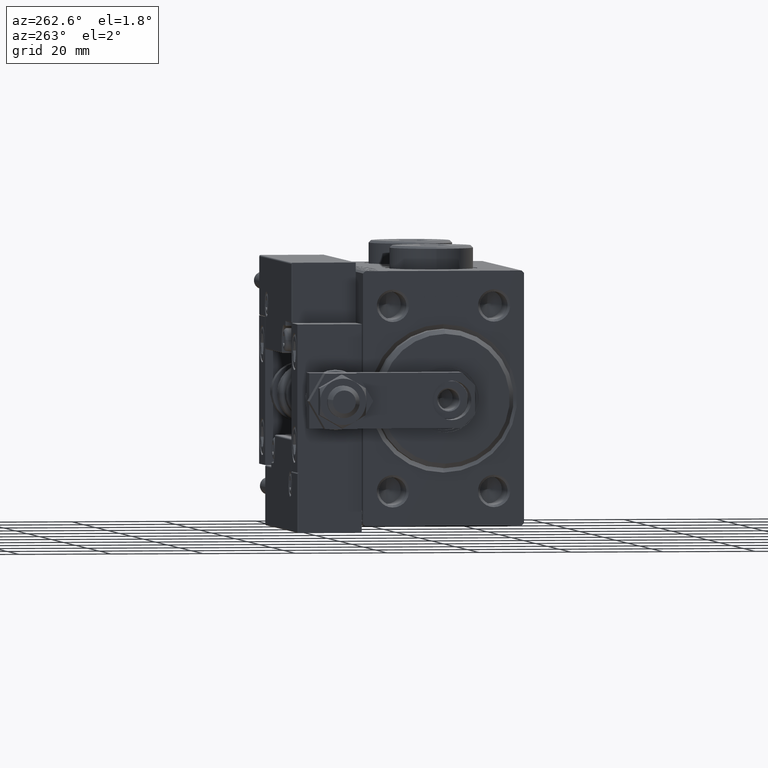
[diagram: clean part render]
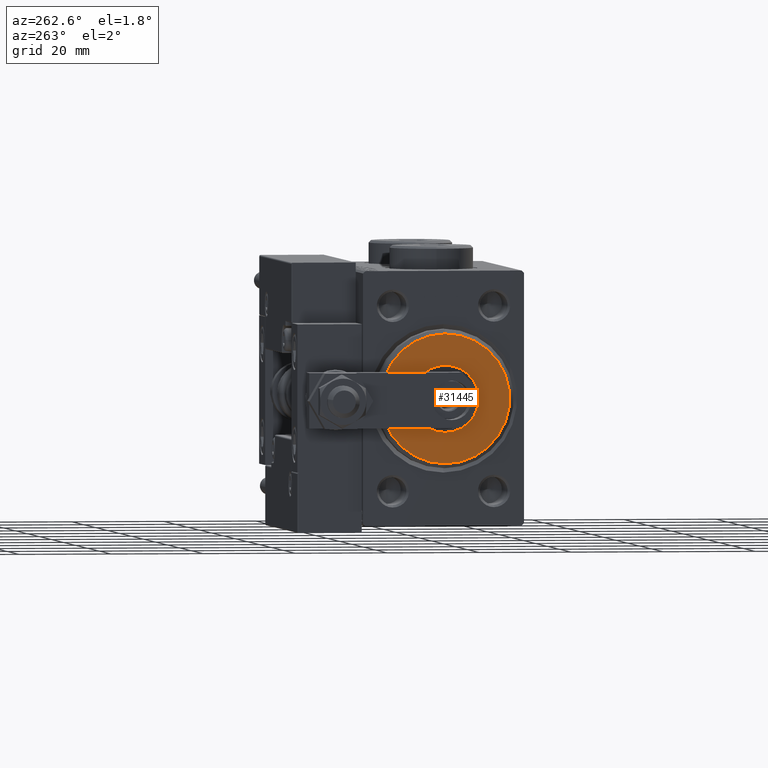
[diagram: same view with one face highlighted and labeled with its STEP entity id]
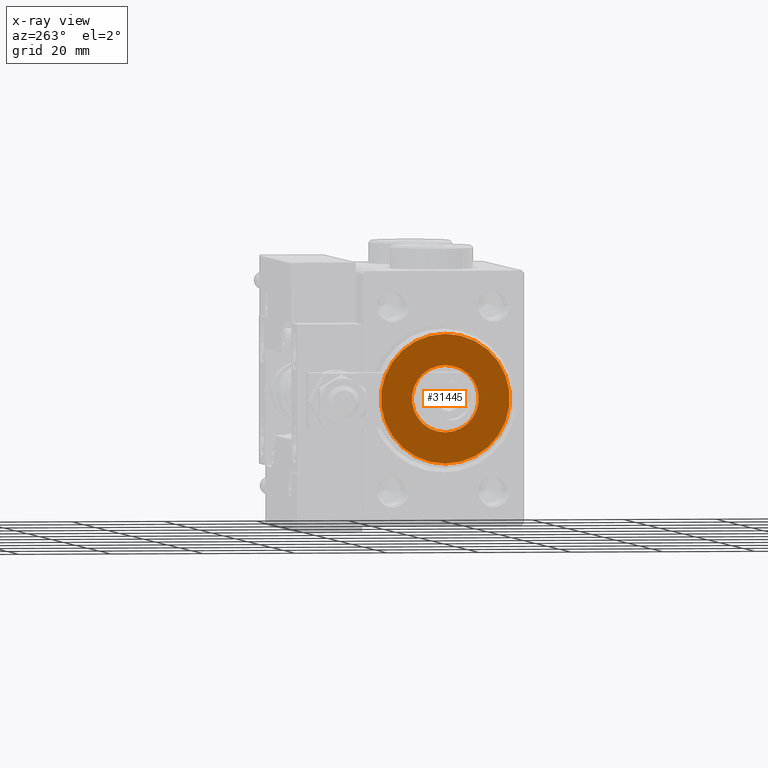
[diagram: x-ray of the same camera — body ghosted, the highlighted face saturated]
A machine part, auxiliary view. The second image highlights one B-rep face of the part: STEP entity #31445.
The next image is the same camera in x-ray: the body ghosted, the highlighted face saturated — about 0% of this face is hidden behind the body in this view.
In plain terms, the highlighted planar face has unit normal (-1, 0, 0).
Its self-contained STEP definition (entity closure, byte-faithful):
#1360 = ORIENTED_EDGE ( 'NONE', *, *, #12369, .F. ) ;
#4779 = CARTESIAN_POINT ( 'NONE',  ( 3.000000000000000000, 0.000000000000000000, 0.000000000000000000 ) ) ;
#5156 = CARTESIAN_POINT ( 'NONE',  ( 3.000000000000000000, 8.878689293818310074E-16, 7.249999999999999112 ) ) ;
#5350 = FACE_OUTER_BOUND ( 'NONE', #20512, .T. ) ;
#5596 = CARTESIAN_POINT ( 'NONE',  ( 3.000000000000000000, 0.000000000000000000, 0.000000000000000000 ) ) ;
#9050 = CARTESIAN_POINT ( 'NONE',  ( 3.000000000000000000, 0.000000000000000000, 0.000000000000000000 ) ) ;
#9198 = CIRCLE ( 'NONE', #51553, 7.249999999999999112 ) ;
#9817 = AXIS2_PLACEMENT_3D ( 'NONE', #44925, #45189, #41200 ) ;
#12369 = EDGE_CURVE ( 'NONE', #45662, #28391, #9198, .T. ) ;
#12881 = ORIENTED_EDGE ( 'NONE', *, *, #48226, .T. ) ;
#12908 = AXIS2_PLACEMENT_3D ( 'NONE', #4779, #14577, #22791 ) ;
#13047 = DIRECTION ( 'NONE',  ( 1.000000000000000000, -0.000000000000000000, 0.000000000000000000 ) ) ;
#14094 = DIRECTION ( 'NONE',  ( 1.000000000000000000, 0.000000000000000000, 0.000000000000000000 ) ) ;
#14455 = AXIS2_PLACEMENT_3D ( 'NONE', #30167, #34163, #49560 ) ;
#14577 = DIRECTION ( 'NONE',  ( 1.000000000000000000, -0.000000000000000000, 0.000000000000000000 ) ) ;
#14803 = CARTESIAN_POINT ( 'NONE',  ( 3.000000000000000000, 1.775737858763662015E-15, -13.99999999999999645 ) ) ;
#15647 = EDGE_CURVE ( 'NONE', #24540, #47439, #27122, .T. ) ;
#19535 = CIRCLE ( 'NONE', #14455, 7.249999999999999112 ) ;
#20512 = EDGE_LOOP ( 'NONE', ( #12881, #32741 ) ) ;
#20553 = CIRCLE ( 'NONE', #12908, 13.99999999999999645 ) ;
#22041 = AXIS2_PLACEMENT_3D ( 'NONE', #9050, #13047, #50909 ) ;
#22791 = DIRECTION ( 'NONE',  ( 0.000000000000000000, 0.000000000000000000, -1.000000000000000000 ) ) ;
#24540 = VERTEX_POINT ( 'NONE', #14803 ) ;
#27037 = CARTESIAN_POINT ( 'NONE',  ( 3.000000000000000000, 0.000000000000000000, 13.99999999999999645 ) ) ;
#27122 = CIRCLE ( 'NONE', #22041, 13.99999999999999645 ) ;
#28391 = VERTEX_POINT ( 'NONE', #30391 ) ;
#28719 = FACE_BOUND ( 'NONE', #37570, .T. ) ;
#30167 = CARTESIAN_POINT ( 'NONE',  ( 3.000000000000000000, 0.000000000000000000, 0.000000000000000000 ) ) ;
#30391 = CARTESIAN_POINT ( 'NONE',  ( 3.000000000000000000, 0.000000000000000000, -7.249999999999999112 ) ) ;
#31445 = ADVANCED_FACE ( 'NONE', ( #5350, #28719 ), #37225, .T. ) ;
#32741 = ORIENTED_EDGE ( 'NONE', *, *, #15647, .T. ) ;
#34163 = DIRECTION ( 'NONE',  ( 1.000000000000000000, 0.000000000000000000, 0.000000000000000000 ) ) ;
#37225 = PLANE ( 'NONE',  #9817 ) ;
#37289 = ORIENTED_EDGE ( 'NONE', *, *, #41256, .F. ) ;
#37570 = EDGE_LOOP ( 'NONE', ( #37289, #1360 ) ) ;
#41200 = DIRECTION ( 'NONE',  ( 0.000000000000000000, 0.000000000000000000, -1.000000000000000000 ) ) ;
#41256 = EDGE_CURVE ( 'NONE', #28391, #45662, #19535, .T. ) ;
#41964 = DIRECTION ( 'NONE',  ( 0.000000000000000000, 0.000000000000000000, -1.000000000000000000 ) ) ;
#44925 = CARTESIAN_POINT ( 'NONE',  ( 3.000000000000000000, 0.000000000000000000, 0.000000000000000000 ) ) ;
#45189 = DIRECTION ( 'NONE',  ( 1.000000000000000000, -0.000000000000000000, 0.000000000000000000 ) ) ;
#45662 = VERTEX_POINT ( 'NONE', #5156 ) ;
#47439 = VERTEX_POINT ( 'NONE', #27037 ) ;
#48226 = EDGE_CURVE ( 'NONE', #47439, #24540, #20553, .T. ) ;
#49560 = DIRECTION ( 'NONE',  ( 0.000000000000000000, 0.000000000000000000, -1.000000000000000000 ) ) ;
#50909 = DIRECTION ( 'NONE',  ( 0.000000000000000000, 0.000000000000000000, -1.000000000000000000 ) ) ;
#51553 = AXIS2_PLACEMENT_3D ( 'NONE', #5596, #14094, #41964 ) ;